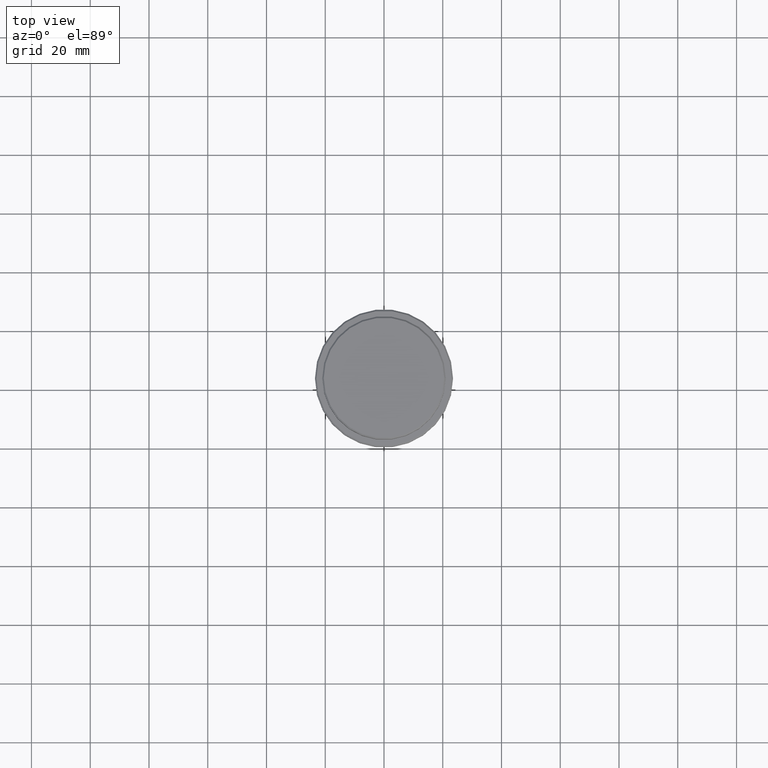
[diagram: clean part render]
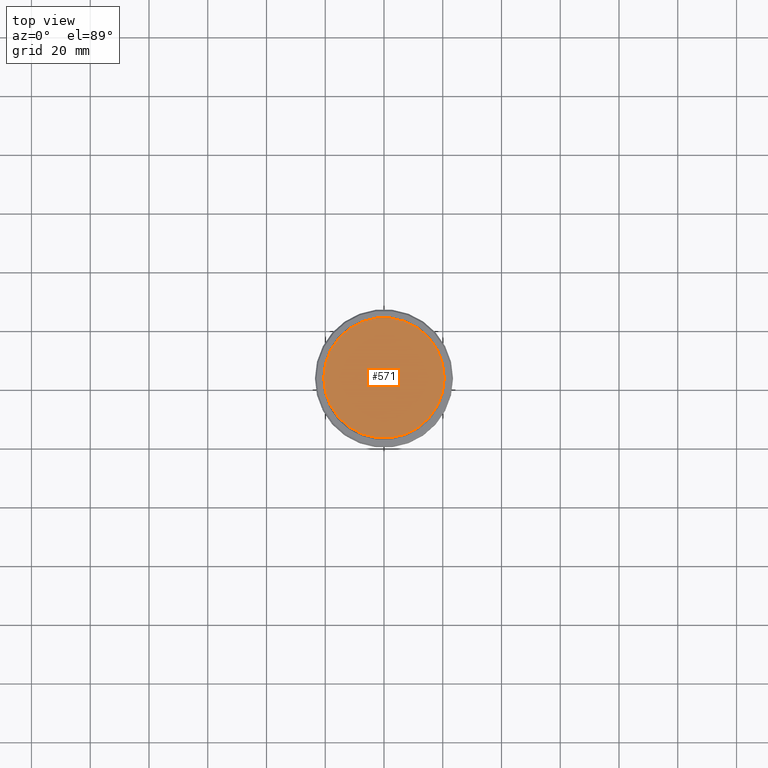
[diagram: same view with one face highlighted and labeled with its STEP entity id]
A machine part, top view. The second image highlights one B-rep face of the part: STEP entity #571.
In plain terms, the highlighted planar face has unit normal (0, -0, 1).
Its self-contained STEP definition (entity closure, byte-faithful):
#17 = CARTESIAN_POINT ( 'NONE',  ( 0.000000000000000000, 0.000000000000000000, 0.000000000000000000 ) ) ;
#121 = VERTEX_POINT ( 'NONE', #201 ) ;
#196 = CARTESIAN_POINT ( 'NONE',  ( 0.000000000000000000, 0.000000000000000000, 0.000000000000000000 ) ) ;
#201 = CARTESIAN_POINT ( 'NONE',  ( 20.50000000000001776, 2.541142108230758663E-15, 0.000000000000000000 ) ) ;
#216 = PLANE ( 'NONE',  #1299 ) ;
#376 = EDGE_CURVE ( 'NONE', #389, #121, #397, .T. ) ;
#388 = CIRCLE ( 'NONE', #666, 20.50000000000001776 ) ;
#389 = VERTEX_POINT ( 'NONE', #438 ) ;
#397 = CIRCLE ( 'NONE', #1130, 20.50000000000001776 ) ;
#438 = CARTESIAN_POINT ( 'NONE',  ( -20.50000000000001776, 0.000000000000000000, 0.000000000000000000 ) ) ;
#571 = ADVANCED_FACE ( 'NONE', ( #1197 ), #216, .T. ) ;
#653 = DIRECTION ( 'NONE',  ( 0.000000000000000000, -0.000000000000000000, 1.000000000000000000 ) ) ;
#666 = AXIS2_PLACEMENT_3D ( 'NONE', #196, #1177, #1055 ) ;
#816 = EDGE_LOOP ( 'NONE', ( #985, #1244 ) ) ;
#974 = DIRECTION ( 'NONE',  ( -0.000000000000000000, -0.000000000000000000, 1.000000000000000000 ) ) ;
#985 = ORIENTED_EDGE ( 'NONE', *, *, #376, .T. ) ;
#1055 = DIRECTION ( 'NONE',  ( 1.000000000000000000, 0.000000000000000000, 0.000000000000000000 ) ) ;
#1092 = DIRECTION ( 'NONE',  ( 1.000000000000000000, 0.000000000000000000, 0.000000000000000000 ) ) ;
#1130 = AXIS2_PLACEMENT_3D ( 'NONE', #17, #974, #1410 ) ;
#1177 = DIRECTION ( 'NONE',  ( -0.000000000000000000, -0.000000000000000000, 1.000000000000000000 ) ) ;
#1197 = FACE_OUTER_BOUND ( 'NONE', #816, .T. ) ;
#1244 = ORIENTED_EDGE ( 'NONE', *, *, #1390, .T. ) ;
#1299 = AXIS2_PLACEMENT_3D ( 'NONE', #1315, #653, #1092 ) ;
#1315 = CARTESIAN_POINT ( 'NONE',  ( 0.000000000000000000, 0.000000000000000000, 0.000000000000000000 ) ) ;
#1390 = EDGE_CURVE ( 'NONE', #121, #389, #388, .T. ) ;
#1410 = DIRECTION ( 'NONE',  ( 1.000000000000000000, 0.000000000000000000, 0.000000000000000000 ) ) ;